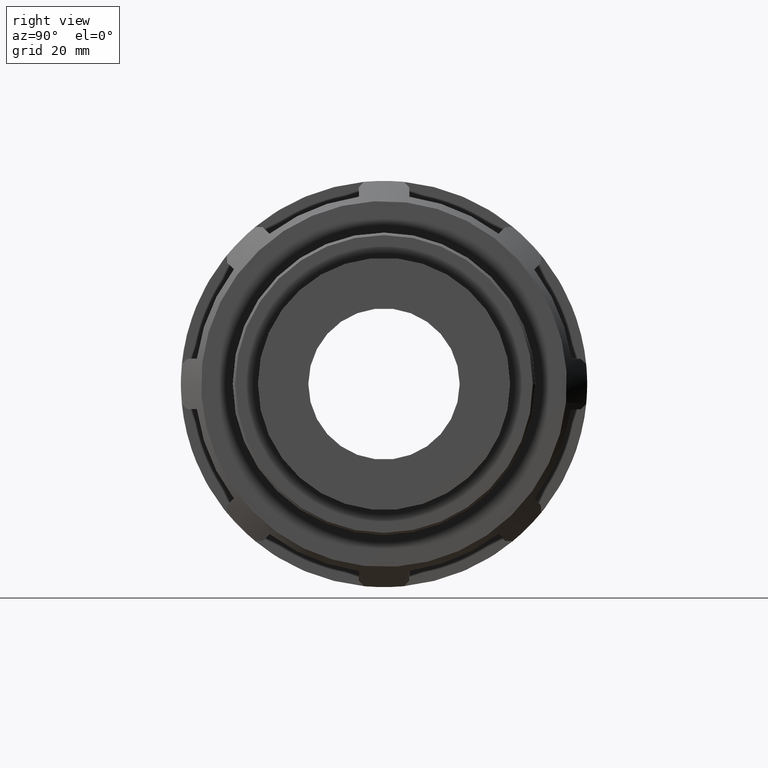
[diagram: clean part render]
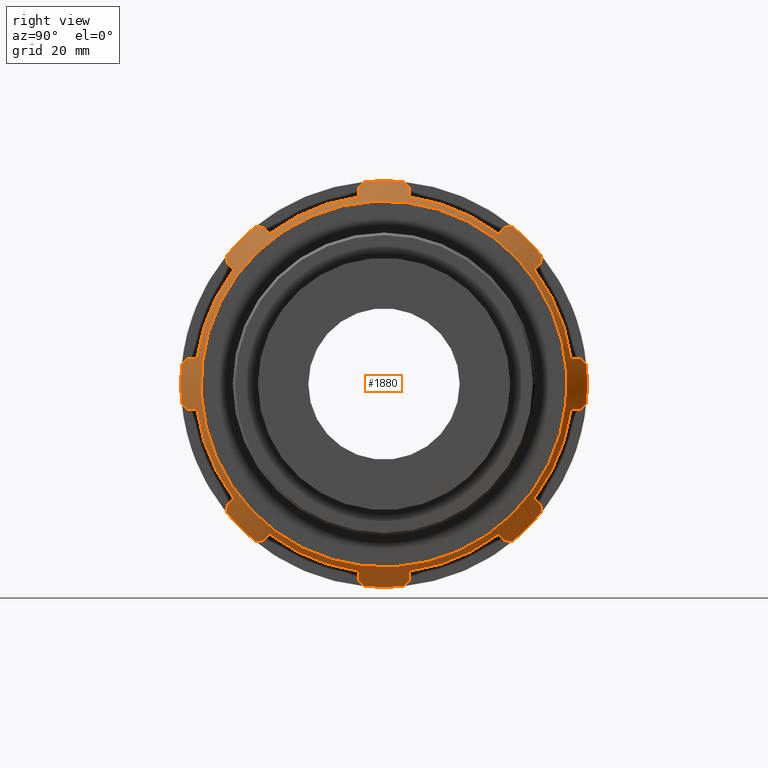
[diagram: same view with one face highlighted and labeled with its STEP entity id]
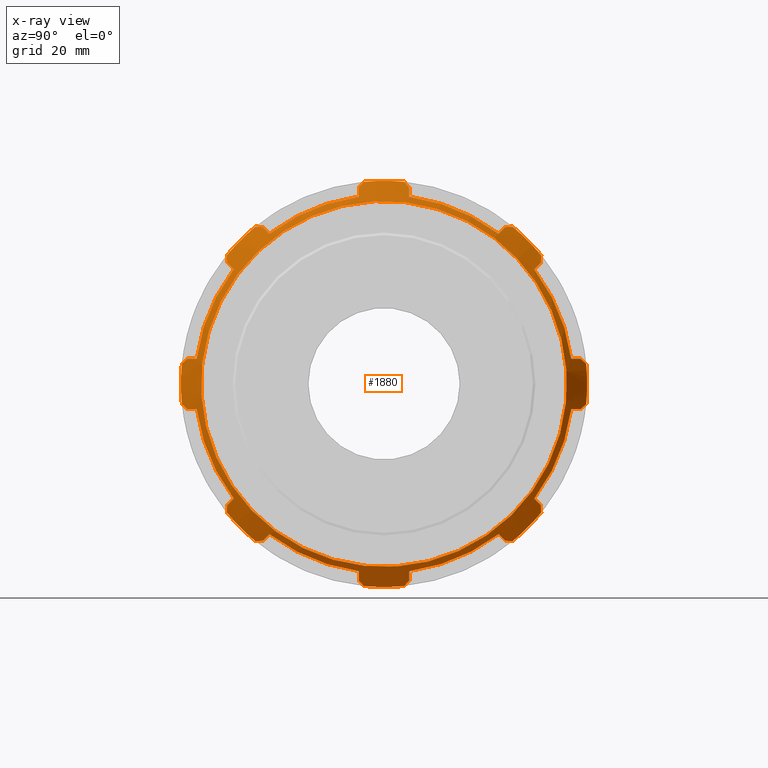
[diagram: x-ray of the same camera — body ghosted, the highlighted face saturated]
A machine part, right view. The second image highlights one B-rep face of the part: STEP entity #1880.
The next image is the same camera in x-ray: the body ghosted, the highlighted face saturated — about 0% of this face is hidden behind the body in this view.
In plain terms, the highlighted conical surface has half-angle 45 deg.
Its self-contained STEP definition (entity closure, byte-faithful):
#15=(
BOUNDED_CURVE()
B_SPLINE_CURVE(2,(#2909,#2910,#2911),.UNSPECIFIED.,.F.,.F.)
B_SPLINE_CURVE_WITH_KNOTS((3,3),(0.,0.201460557649687),.UNSPECIFIED.)
CURVE()
GEOMETRIC_REPRESENTATION_ITEM()
RATIONAL_B_SPLINE_CURVE((1.,1.00078288374616,1.00121421770646))
REPRESENTATION_ITEM('')
);
#16=(
BOUNDED_CURVE()
B_SPLINE_CURVE(2,(#2923,#2924,#2925),.UNSPECIFIED.,.F.,.F.)
B_SPLINE_CURVE_WITH_KNOTS((3,3),(0.695824563351553,0.897285121001256),
 .UNSPECIFIED.)
CURVE()
GEOMETRIC_REPRESENTATION_ITEM()
RATIONAL_B_SPLINE_CURVE((1.00121421770642,1.00078288374614,1.))
REPRESENTATION_ITEM('')
);
#17=(
BOUNDED_CURVE()
B_SPLINE_CURVE(2,(#2927,#2928,#2929),.UNSPECIFIED.,.F.,.F.)
B_SPLINE_CURVE_WITH_KNOTS((3,3),(4.710001351441,5.11449200149552),
 .UNSPECIFIED.)
CURVE()
GEOMETRIC_REPRESENTATION_ITEM()
RATIONAL_B_SPLINE_CURVE((1.01111722077628,1.00826667474192,1.00484453214834))
REPRESENTATION_ITEM('')
);
#18=(
BOUNDED_CURVE()
B_SPLINE_CURVE(2,(#2933,#2934,#2935),.UNSPECIFIED.,.F.,.F.)
B_SPLINE_CURVE_WITH_KNOTS((3,3),(0.271129458698323,0.675620108753983),
 .UNSPECIFIED.)
CURVE()
GEOMETRIC_REPRESENTATION_ITEM()
RATIONAL_B_SPLINE_CURVE((1.00484453214878,1.00826667474268,1.01111722077731))
REPRESENTATION_ITEM('')
);
#19=(
BOUNDED_CURVE()
B_SPLINE_CURVE(2,(#2937,#2938,#2939),.UNSPECIFIED.,.F.,.F.)
B_SPLINE_CURVE_WITH_KNOTS((3,3),(0.,0.2014605576497),.UNSPECIFIED.)
CURVE()
GEOMETRIC_REPRESENTATION_ITEM()
RATIONAL_B_SPLINE_CURVE((1.,1.00078288374613,1.0012142177064))
REPRESENTATION_ITEM('')
);
#20=(
BOUNDED_CURVE()
B_SPLINE_CURVE(2,(#2943,#2944,#2945),.UNSPECIFIED.,.F.,.F.)
B_SPLINE_CURVE_WITH_KNOTS((3,3),(0.695824563351545,0.897285121001251),
 .UNSPECIFIED.)
CURVE()
GEOMETRIC_REPRESENTATION_ITEM()
RATIONAL_B_SPLINE_CURVE((1.00121421770639,1.00078288374612,1.))
REPRESENTATION_ITEM('')
);
#21=(
BOUNDED_CURVE()
B_SPLINE_CURVE(2,(#2947,#2948,#2949),.UNSPECIFIED.,.F.,.F.)
B_SPLINE_CURVE_WITH_KNOTS((3,3),(4.71000135143891,5.11449200149471),
 .UNSPECIFIED.)
CURVE()
GEOMETRIC_REPRESENTATION_ITEM()
RATIONAL_B_SPLINE_CURVE((1.01111722077714,1.00826667474256,1.00484453214871))
REPRESENTATION_ITEM('')
);
#22=(
BOUNDED_CURVE()
B_SPLINE_CURVE(2,(#2953,#2954,#2955),.UNSPECIFIED.,.F.,.F.)
B_SPLINE_CURVE_WITH_KNOTS((3,3),(0.271129458696591,0.675620108749287),
 .UNSPECIFIED.)
CURVE()
GEOMETRIC_REPRESENTATION_ITEM()
RATIONAL_B_SPLINE_CURVE((1.00484453214775,1.00826667474091,1.01111722077493))
REPRESENTATION_ITEM('')
);
#23=(
BOUNDED_CURVE()
B_SPLINE_CURVE(2,(#2957,#2958,#2959),.UNSPECIFIED.,.F.,.F.)
B_SPLINE_CURVE_WITH_KNOTS((3,3),(0.,0.201460557649695),.UNSPECIFIED.)
CURVE()
GEOMETRIC_REPRESENTATION_ITEM()
RATIONAL_B_SPLINE_CURVE((1.,1.00078288374617,1.00121421770646))
REPRESENTATION_ITEM('')
);
#24=(
BOUNDED_CURVE()
B_SPLINE_CURVE(2,(#2963,#2964,#2965),.UNSPECIFIED.,.F.,.F.)
B_SPLINE_CURVE_WITH_KNOTS((3,3),(0.695824563351555,0.897285121001254),
 .UNSPECIFIED.)
CURVE()
GEOMETRIC_REPRESENTATION_ITEM()
RATIONAL_B_SPLINE_CURVE((1.00121421770642,1.00078288374614,1.))
REPRESENTATION_ITEM('')
);
#25=(
BOUNDED_CURVE()
B_SPLINE_CURVE(2,(#2967,#2968,#2969),.UNSPECIFIED.,.F.,.F.)
B_SPLINE_CURVE_WITH_KNOTS((3,3),(4.71000135144143,5.11449200149583),
 .UNSPECIFIED.)
CURVE()
GEOMETRIC_REPRESENTATION_ITEM()
RATIONAL_B_SPLINE_CURVE((1.01111722077692,1.00826667474239,1.00484453214861))
REPRESENTATION_ITEM('')
);
#26=(
BOUNDED_CURVE()
B_SPLINE_CURVE(2,(#2973,#2974,#2975),.UNSPECIFIED.,.F.,.F.)
B_SPLINE_CURVE_WITH_KNOTS((3,3),(0.271129458698479,0.67562010875426),
 .UNSPECIFIED.)
CURVE()
GEOMETRIC_REPRESENTATION_ITEM()
RATIONAL_B_SPLINE_CURVE((1.00484453214872,1.00826667474257,1.01111722077715))
REPRESENTATION_ITEM('')
);
#27=(
BOUNDED_CURVE()
B_SPLINE_CURVE(2,(#2977,#2978,#2979),.UNSPECIFIED.,.F.,.F.)
B_SPLINE_CURVE_WITH_KNOTS((3,3),(0.,0.2014605576497),.UNSPECIFIED.)
CURVE()
GEOMETRIC_REPRESENTATION_ITEM()
RATIONAL_B_SPLINE_CURVE((1.,1.00078288374613,1.00121421770641))
REPRESENTATION_ITEM('')
);
#28=(
BOUNDED_CURVE()
B_SPLINE_CURVE(2,(#2983,#2984,#2985),.UNSPECIFIED.,.F.,.F.)
B_SPLINE_CURVE_WITH_KNOTS((3,3),(0.69582456335157,0.89728512100125),
 .UNSPECIFIED.)
CURVE()
GEOMETRIC_REPRESENTATION_ITEM()
RATIONAL_B_SPLINE_CURVE((1.00121421770646,1.00078288374616,1.))
REPRESENTATION_ITEM('')
);
#29=(
BOUNDED_CURVE()
B_SPLINE_CURVE(2,(#2987,#2988,#2989),.UNSPECIFIED.,.F.,.F.)
B_SPLINE_CURVE_WITH_KNOTS((3,3),(4.71000135143912,5.11449200149484),
 .UNSPECIFIED.)
CURVE()
GEOMETRIC_REPRESENTATION_ITEM()
RATIONAL_B_SPLINE_CURVE((1.01111722077731,1.00826667474268,1.00484453214878))
REPRESENTATION_ITEM('')
);
#30=(
BOUNDED_CURVE()
B_SPLINE_CURVE(2,(#2993,#2994,#2995),.UNSPECIFIED.,.F.,.F.)
B_SPLINE_CURVE_WITH_KNOTS((3,3),(0.271129458697378,0.675620108751493),
 .UNSPECIFIED.)
CURVE()
GEOMETRIC_REPRESENTATION_ITEM()
RATIONAL_B_SPLINE_CURVE((1.0048445321483,1.00826667474185,1.01111722077619))
REPRESENTATION_ITEM('')
);
#31=(
BOUNDED_CURVE()
B_SPLINE_CURVE(2,(#2997,#2998,#2999),.UNSPECIFIED.,.F.,.F.)
B_SPLINE_CURVE_WITH_KNOTS((3,3),(0.,0.201460557649703),.UNSPECIFIED.)
CURVE()
GEOMETRIC_REPRESENTATION_ITEM()
RATIONAL_B_SPLINE_CURVE((1.,1.00078288374614,1.00121421770642))
REPRESENTATION_ITEM('')
);
#32=(
BOUNDED_CURVE()
B_SPLINE_CURVE(2,(#3003,#3004,#3005),.UNSPECIFIED.,.F.,.F.)
B_SPLINE_CURVE_WITH_KNOTS((3,3),(0.695824563351557,0.897285121001254),
 .UNSPECIFIED.)
CURVE()
GEOMETRIC_REPRESENTATION_ITEM()
RATIONAL_B_SPLINE_CURVE((1.00121421770642,1.00078288374614,1.))
REPRESENTATION_ITEM('')
);
#33=(
BOUNDED_CURVE()
B_SPLINE_CURVE(2,(#3007,#3008,#3009),.UNSPECIFIED.,.F.,.F.)
B_SPLINE_CURVE_WITH_KNOTS((3,3),(4.71000135144163,5.11449200149582),
 .UNSPECIFIED.)
CURVE()
GEOMETRIC_REPRESENTATION_ITEM()
RATIONAL_B_SPLINE_CURVE((1.01111722077634,1.00826667474196,1.00484453214836))
REPRESENTATION_ITEM('')
);
#34=(
BOUNDED_CURVE()
B_SPLINE_CURVE(2,(#3013,#3014,#3015),.UNSPECIFIED.,.F.,.F.)
B_SPLINE_CURVE_WITH_KNOTS((3,3),(0.271129458698487,0.675620108754275),
 .UNSPECIFIED.)
CURVE()
GEOMETRIC_REPRESENTATION_ITEM()
RATIONAL_B_SPLINE_CURVE((1.00484453214871,1.00826667474256,1.01111722077714))
REPRESENTATION_ITEM('')
);
#35=(
BOUNDED_CURVE()
B_SPLINE_CURVE(2,(#3017,#3018,#3019),.UNSPECIFIED.,.F.,.F.)
B_SPLINE_CURVE_WITH_KNOTS((3,3),(0.,0.201460557649712),.UNSPECIFIED.)
CURVE()
GEOMETRIC_REPRESENTATION_ITEM()
RATIONAL_B_SPLINE_CURVE((1.,1.00078288374611,1.00121421770637))
REPRESENTATION_ITEM('')
);
#36=(
BOUNDED_CURVE()
B_SPLINE_CURVE(2,(#3023,#3024,#3025),.UNSPECIFIED.,.F.,.F.)
B_SPLINE_CURVE_WITH_KNOTS((3,3),(0.69582456335154,0.897285121001254),
 .UNSPECIFIED.)
CURVE()
GEOMETRIC_REPRESENTATION_ITEM()
RATIONAL_B_SPLINE_CURVE((1.00121421770639,1.00078288374612,1.))
REPRESENTATION_ITEM('')
);
#37=(
BOUNDED_CURVE()
B_SPLINE_CURVE(2,(#3027,#3028,#3029),.UNSPECIFIED.,.F.,.F.)
B_SPLINE_CURVE_WITH_KNOTS((3,3),(4.71000135143915,5.11449200149485),
 .UNSPECIFIED.)
CURVE()
GEOMETRIC_REPRESENTATION_ITEM()
RATIONAL_B_SPLINE_CURVE((1.01111722077732,1.00826667474269,1.00484453214879))
REPRESENTATION_ITEM('')
);
#38=(
BOUNDED_CURVE()
B_SPLINE_CURVE(2,(#3033,#3034,#3035),.UNSPECIFIED.,.F.,.F.)
B_SPLINE_CURVE_WITH_KNOTS((3,3),(0.271129458697135,0.675620108751332),
 .UNSPECIFIED.)
CURVE()
GEOMETRIC_REPRESENTATION_ITEM()
RATIONAL_B_SPLINE_CURVE((1.00484453214871,1.00826667474255,1.01111722077714))
REPRESENTATION_ITEM('')
);
#39=(
BOUNDED_CURVE()
B_SPLINE_CURVE(2,(#3037,#3038,#3039),.UNSPECIFIED.,.F.,.F.)
B_SPLINE_CURVE_WITH_KNOTS((3,3),(0.,0.201460557649702),.UNSPECIFIED.)
CURVE()
GEOMETRIC_REPRESENTATION_ITEM()
RATIONAL_B_SPLINE_CURVE((1.,1.00078288374613,1.0012142177064))
REPRESENTATION_ITEM('')
);
#40=(
BOUNDED_CURVE()
B_SPLINE_CURVE(2,(#3043,#3044,#3045),.UNSPECIFIED.,.F.,.F.)
B_SPLINE_CURVE_WITH_KNOTS((3,3),(0.695824563351557,0.897285121001259),
 .UNSPECIFIED.)
CURVE()
GEOMETRIC_REPRESENTATION_ITEM()
RATIONAL_B_SPLINE_CURVE((1.0012142177064,1.00078288374613,1.))
REPRESENTATION_ITEM('')
);
#41=(
BOUNDED_CURVE()
B_SPLINE_CURVE(2,(#3047,#3048,#3049),.UNSPECIFIED.,.F.,.F.)
B_SPLINE_CURVE_WITH_KNOTS((3,3),(4.71000135144145,5.11449200149572),
 .UNSPECIFIED.)
CURVE()
GEOMETRIC_REPRESENTATION_ITEM()
RATIONAL_B_SPLINE_CURVE((1.01111722077624,1.00826667474189,1.00484453214832))
REPRESENTATION_ITEM('')
);
#42=(
BOUNDED_CURVE()
B_SPLINE_CURVE(2,(#3053,#3054,#3055),.UNSPECIFIED.,.F.,.F.)
B_SPLINE_CURVE_WITH_KNOTS((3,3),(0.271129458698487,0.675620108754275),
 .UNSPECIFIED.)
CURVE()
GEOMETRIC_REPRESENTATION_ITEM()
RATIONAL_B_SPLINE_CURVE((1.00484453214871,1.00826667474256,1.01111722077714))
REPRESENTATION_ITEM('')
);
#43=(
BOUNDED_CURVE()
B_SPLINE_CURVE(2,(#3057,#3058,#3059),.UNSPECIFIED.,.F.,.F.)
B_SPLINE_CURVE_WITH_KNOTS((3,3),(0.,0.201460557649694),.UNSPECIFIED.)
CURVE()
GEOMETRIC_REPRESENTATION_ITEM()
RATIONAL_B_SPLINE_CURVE((1.,1.00078288374614,1.00121421770641))
REPRESENTATION_ITEM('')
);
#44=(
BOUNDED_CURVE()
B_SPLINE_CURVE(2,(#3063,#3064,#3065),.UNSPECIFIED.,.F.,.F.)
B_SPLINE_CURVE_WITH_KNOTS((3,3),(0.695824563351536,0.897285121001255),
 .UNSPECIFIED.)
CURVE()
GEOMETRIC_REPRESENTATION_ITEM()
RATIONAL_B_SPLINE_CURVE((1.00121421770637,1.00078288374611,1.))
REPRESENTATION_ITEM('')
);
#45=(
BOUNDED_CURVE()
B_SPLINE_CURVE(2,(#3067,#3068,#3069),.UNSPECIFIED.,.F.,.F.)
B_SPLINE_CURVE_WITH_KNOTS((3,3),(4.71000135143915,5.11449200149485),
 .UNSPECIFIED.)
CURVE()
GEOMETRIC_REPRESENTATION_ITEM()
RATIONAL_B_SPLINE_CURVE((1.01111722077732,1.00826667474269,1.00484453214879))
REPRESENTATION_ITEM('')
);
#46=(
BOUNDED_CURVE()
B_SPLINE_CURVE(2,(#3072,#3073,#3074),.UNSPECIFIED.,.F.,.F.)
B_SPLINE_CURVE_WITH_KNOTS((3,3),(0.271129458699923,0.67562010875808),
 .UNSPECIFIED.)
CURVE()
GEOMETRIC_REPRESENTATION_ITEM()
RATIONAL_B_SPLINE_CURVE((1.00484453214947,1.00826667474386,1.01111722077888))
REPRESENTATION_ITEM('')
);
#49=CONICAL_SURFACE('',#2020,45.61544,45.);
#57=FACE_BOUND('',#341,.T.);
#105=CIRCLE('',#2021,43.23088);
#106=CIRCLE('',#2022,48.);
#107=CIRCLE('',#2023,44.64);
#108=CIRCLE('',#2024,48.);
#109=CIRCLE('',#2025,44.64);
#110=CIRCLE('',#2026,48.);
#111=CIRCLE('',#2027,44.64);
#112=CIRCLE('',#2028,48.);
#113=CIRCLE('',#2029,44.64);
#114=CIRCLE('',#2030,48.);
#115=CIRCLE('',#2031,44.64);
#116=CIRCLE('',#2032,48.);
#117=CIRCLE('',#2033,44.64);
#118=CIRCLE('',#2034,48.);
#119=CIRCLE('',#2035,44.64);
#120=CIRCLE('',#2036,48.);
#121=CIRCLE('',#2037,44.64);
#226=FACE_OUTER_BOUND('',#340,.T.);
#340=EDGE_LOOP('',(#1445));
#341=EDGE_LOOP('',(#1446,#1447,#1448,#1449,#1450,#1451,#1452,#1453,#1454,
#1455,#1456,#1457,#1458,#1459,#1460,#1461,#1462,#1463,#1464,#1465,#1466,
#1467,#1468,#1469,#1470,#1471,#1472,#1473,#1474,#1475,#1476,#1477,#1478,
#1479,#1480,#1481,#1482,#1483,#1484,#1485,#1486,#1487,#1488,#1489,#1490,
#1491,#1492,#1493));
#829=VERTEX_POINT('',#2907);
#830=VERTEX_POINT('',#2908);
#833=VERTEX_POINT('',#2918);
#834=VERTEX_POINT('',#2920);
#835=VERTEX_POINT('',#2922);
#836=VERTEX_POINT('',#2926);
#837=VERTEX_POINT('',#2930);
#838=VERTEX_POINT('',#2932);
#839=VERTEX_POINT('',#2936);
#840=VERTEX_POINT('',#2940);
#841=VERTEX_POINT('',#2942);
#842=VERTEX_POINT('',#2946);
#843=VERTEX_POINT('',#2950);
#844=VERTEX_POINT('',#2952);
#845=VERTEX_POINT('',#2956);
#846=VERTEX_POINT('',#2960);
#847=VERTEX_POINT('',#2962);
#848=VERTEX_POINT('',#2966);
#849=VERTEX_POINT('',#2970);
#850=VERTEX_POINT('',#2972);
#851=VERTEX_POINT('',#2976);
#852=VERTEX_POINT('',#2980);
#853=VERTEX_POINT('',#2982);
#854=VERTEX_POINT('',#2986);
#855=VERTEX_POINT('',#2990);
#856=VERTEX_POINT('',#2992);
#857=VERTEX_POINT('',#2996);
#858=VERTEX_POINT('',#3000);
#859=VERTEX_POINT('',#3002);
#860=VERTEX_POINT('',#3006);
#861=VERTEX_POINT('',#3010);
#862=VERTEX_POINT('',#3012);
#863=VERTEX_POINT('',#3016);
#864=VERTEX_POINT('',#3020);
#865=VERTEX_POINT('',#3022);
#866=VERTEX_POINT('',#3026);
#867=VERTEX_POINT('',#3030);
#868=VERTEX_POINT('',#3032);
#869=VERTEX_POINT('',#3036);
#870=VERTEX_POINT('',#3040);
#871=VERTEX_POINT('',#3042);
#872=VERTEX_POINT('',#3046);
#873=VERTEX_POINT('',#3050);
#874=VERTEX_POINT('',#3052);
#875=VERTEX_POINT('',#3056);
#876=VERTEX_POINT('',#3060);
#877=VERTEX_POINT('',#3062);
#878=VERTEX_POINT('',#3066);
#879=VERTEX_POINT('',#3070);
#1055=EDGE_CURVE('',#829,#830,#15,.T.);
#1059=EDGE_CURVE('',#833,#833,#105,.T.);
#1060=EDGE_CURVE('',#829,#834,#106,.T.);
#1061=EDGE_CURVE('',#835,#834,#16,.T.);
#1062=EDGE_CURVE('',#835,#836,#17,.T.);
#1063=EDGE_CURVE('',#836,#837,#107,.T.);
#1064=EDGE_CURVE('',#837,#838,#18,.T.);
#1065=EDGE_CURVE('',#839,#838,#19,.T.);
#1066=EDGE_CURVE('',#839,#840,#108,.T.);
#1067=EDGE_CURVE('',#841,#840,#20,.T.);
#1068=EDGE_CURVE('',#841,#842,#21,.T.);
#1069=EDGE_CURVE('',#842,#843,#109,.T.);
#1070=EDGE_CURVE('',#843,#844,#22,.T.);
#1071=EDGE_CURVE('',#845,#844,#23,.T.);
#1072=EDGE_CURVE('',#845,#846,#110,.T.);
#1073=EDGE_CURVE('',#847,#846,#24,.T.);
#1074=EDGE_CURVE('',#847,#848,#25,.T.);
#1075=EDGE_CURVE('',#848,#849,#111,.T.);
#1076=EDGE_CURVE('',#849,#850,#26,.T.);
#1077=EDGE_CURVE('',#851,#850,#27,.T.);
#1078=EDGE_CURVE('',#851,#852,#112,.T.);
#1079=EDGE_CURVE('',#853,#852,#28,.T.);
#1080=EDGE_CURVE('',#853,#854,#29,.T.);
#1081=EDGE_CURVE('',#854,#855,#113,.T.);
#1082=EDGE_CURVE('',#855,#856,#30,.T.);
#1083=EDGE_CURVE('',#857,#856,#31,.T.);
#1084=EDGE_CURVE('',#857,#858,#114,.T.);
#1085=EDGE_CURVE('',#859,#858,#32,.T.);
#1086=EDGE_CURVE('',#859,#860,#33,.T.);
#1087=EDGE_CURVE('',#860,#861,#115,.T.);
#1088=EDGE_CURVE('',#861,#862,#34,.T.);
#1089=EDGE_CURVE('',#863,#862,#35,.T.);
#1090=EDGE_CURVE('',#863,#864,#116,.T.);
#1091=EDGE_CURVE('',#865,#864,#36,.T.);
#1092=EDGE_CURVE('',#865,#866,#37,.T.);
#1093=EDGE_CURVE('',#866,#867,#117,.T.);
#1094=EDGE_CURVE('',#867,#868,#38,.T.);
#1095=EDGE_CURVE('',#869,#868,#39,.T.);
#1096=EDGE_CURVE('',#869,#870,#118,.T.);
#1097=EDGE_CURVE('',#871,#870,#40,.T.);
#1098=EDGE_CURVE('',#871,#872,#41,.T.);
#1099=EDGE_CURVE('',#872,#873,#119,.T.);
#1100=EDGE_CURVE('',#873,#874,#42,.T.);
#1101=EDGE_CURVE('',#875,#874,#43,.T.);
#1102=EDGE_CURVE('',#875,#876,#120,.T.);
#1103=EDGE_CURVE('',#877,#876,#44,.T.);
#1104=EDGE_CURVE('',#877,#878,#45,.T.);
#1105=EDGE_CURVE('',#878,#879,#121,.T.);
#1106=EDGE_CURVE('',#879,#830,#46,.T.);
#1445=ORIENTED_EDGE('',*,*,#1059,.T.);
#1446=ORIENTED_EDGE('',*,*,#1055,.F.);
#1447=ORIENTED_EDGE('',*,*,#1060,.T.);
#1448=ORIENTED_EDGE('',*,*,#1061,.F.);
#1449=ORIENTED_EDGE('',*,*,#1062,.T.);
#1450=ORIENTED_EDGE('',*,*,#1063,.T.);
#1451=ORIENTED_EDGE('',*,*,#1064,.T.);
#1452=ORIENTED_EDGE('',*,*,#1065,.F.);
#1453=ORIENTED_EDGE('',*,*,#1066,.T.);
#1454=ORIENTED_EDGE('',*,*,#1067,.F.);
#1455=ORIENTED_EDGE('',*,*,#1068,.T.);
#1456=ORIENTED_EDGE('',*,*,#1069,.T.);
#1457=ORIENTED_EDGE('',*,*,#1070,.T.);
#1458=ORIENTED_EDGE('',*,*,#1071,.F.);
#1459=ORIENTED_EDGE('',*,*,#1072,.T.);
#1460=ORIENTED_EDGE('',*,*,#1073,.F.);
#1461=ORIENTED_EDGE('',*,*,#1074,.T.);
#1462=ORIENTED_EDGE('',*,*,#1075,.T.);
#1463=ORIENTED_EDGE('',*,*,#1076,.T.);
#1464=ORIENTED_EDGE('',*,*,#1077,.F.);
#1465=ORIENTED_EDGE('',*,*,#1078,.T.);
#1466=ORIENTED_EDGE('',*,*,#1079,.F.);
#1467=ORIENTED_EDGE('',*,*,#1080,.T.);
#1468=ORIENTED_EDGE('',*,*,#1081,.T.);
#1469=ORIENTED_EDGE('',*,*,#1082,.T.);
#1470=ORIENTED_EDGE('',*,*,#1083,.F.);
#1471=ORIENTED_EDGE('',*,*,#1084,.T.);
#1472=ORIENTED_EDGE('',*,*,#1085,.F.);
#1473=ORIENTED_EDGE('',*,*,#1086,.T.);
#1474=ORIENTED_EDGE('',*,*,#1087,.T.);
#1475=ORIENTED_EDGE('',*,*,#1088,.T.);
#1476=ORIENTED_EDGE('',*,*,#1089,.F.);
#1477=ORIENTED_EDGE('',*,*,#1090,.T.);
#1478=ORIENTED_EDGE('',*,*,#1091,.F.);
#1479=ORIENTED_EDGE('',*,*,#1092,.T.);
#1480=ORIENTED_EDGE('',*,*,#1093,.T.);
#1481=ORIENTED_EDGE('',*,*,#1094,.T.);
#1482=ORIENTED_EDGE('',*,*,#1095,.F.);
#1483=ORIENTED_EDGE('',*,*,#1096,.T.);
#1484=ORIENTED_EDGE('',*,*,#1097,.F.);
#1485=ORIENTED_EDGE('',*,*,#1098,.T.);
#1486=ORIENTED_EDGE('',*,*,#1099,.T.);
#1487=ORIENTED_EDGE('',*,*,#1100,.T.);
#1488=ORIENTED_EDGE('',*,*,#1101,.F.);
#1489=ORIENTED_EDGE('',*,*,#1102,.T.);
#1490=ORIENTED_EDGE('',*,*,#1103,.F.);
#1491=ORIENTED_EDGE('',*,*,#1104,.T.);
#1492=ORIENTED_EDGE('',*,*,#1105,.T.);
#1493=ORIENTED_EDGE('',*,*,#1106,.T.);
#1880=ADVANCED_FACE('',(#226,#57),#49,.T.);
#2020=AXIS2_PLACEMENT_3D('',#2917,#2368,#2369);
#2021=AXIS2_PLACEMENT_3D('',#2919,#2370,#2371);
#2022=AXIS2_PLACEMENT_3D('',#2921,#2372,#2373);
#2023=AXIS2_PLACEMENT_3D('',#2931,#2374,#2375);
#2024=AXIS2_PLACEMENT_3D('',#2941,#2376,#2377);
#2025=AXIS2_PLACEMENT_3D('',#2951,#2378,#2379);
#2026=AXIS2_PLACEMENT_3D('',#2961,#2380,#2381);
#2027=AXIS2_PLACEMENT_3D('',#2971,#2382,#2383);
#2028=AXIS2_PLACEMENT_3D('',#2981,#2384,#2385);
#2029=AXIS2_PLACEMENT_3D('',#2991,#2386,#2387);
#2030=AXIS2_PLACEMENT_3D('',#3001,#2388,#2389);
#2031=AXIS2_PLACEMENT_3D('',#3011,#2390,#2391);
#2032=AXIS2_PLACEMENT_3D('',#3021,#2392,#2393);
#2033=AXIS2_PLACEMENT_3D('',#3031,#2394,#2395);
#2034=AXIS2_PLACEMENT_3D('',#3041,#2396,#2397);
#2035=AXIS2_PLACEMENT_3D('',#3051,#2398,#2399);
#2036=AXIS2_PLACEMENT_3D('',#3061,#2400,#2401);
#2037=AXIS2_PLACEMENT_3D('',#3071,#2402,#2403);
#2368=DIRECTION('center_axis',(-1.,0.,0.));
#2369=DIRECTION('ref_axis',(0.,1.,0.));
#2370=DIRECTION('center_axis',(-1.,0.,0.));
#2371=DIRECTION('ref_axis',(0.,1.,0.));
#2372=DIRECTION('center_axis',(1.,0.,0.));
#2373=DIRECTION('ref_axis',(0.,1.,0.));
#2374=DIRECTION('center_axis',(1.,0.,0.));
#2375=DIRECTION('ref_axis',(0.,1.,0.));
#2376=DIRECTION('center_axis',(1.,0.,0.));
#2377=DIRECTION('ref_axis',(0.,1.,0.));
#2378=DIRECTION('center_axis',(1.,0.,0.));
#2379=DIRECTION('ref_axis',(0.,1.,0.));
#2380=DIRECTION('center_axis',(1.,0.,0.));
#2381=DIRECTION('ref_axis',(0.,-1.,0.));
#2382=DIRECTION('center_axis',(1.,0.,0.));
#2383=DIRECTION('ref_axis',(0.,1.,0.));
#2384=DIRECTION('center_axis',(1.,0.,0.));
#2385=DIRECTION('ref_axis',(0.,-1.,0.));
#2386=DIRECTION('center_axis',(1.,0.,0.));
#2387=DIRECTION('ref_axis',(0.,1.,0.));
#2388=DIRECTION('center_axis',(1.,0.,0.));
#2389=DIRECTION('ref_axis',(0.,-1.,0.));
#2390=DIRECTION('center_axis',(1.,0.,0.));
#2391=DIRECTION('ref_axis',(0.,1.,0.));
#2392=DIRECTION('center_axis',(1.,0.,0.));
#2393=DIRECTION('ref_axis',(0.,1.,0.));
#2394=DIRECTION('center_axis',(1.,0.,0.));
#2395=DIRECTION('ref_axis',(0.,1.,0.));
#2396=DIRECTION('center_axis',(1.,0.,0.));
#2397=DIRECTION('ref_axis',(0.,1.,0.));
#2398=DIRECTION('center_axis',(1.,0.,0.));
#2399=DIRECTION('ref_axis',(0.,1.,0.));
#2400=DIRECTION('center_axis',(1.,0.,0.));
#2401=DIRECTION('ref_axis',(0.,1.,0.));
#2402=DIRECTION('center_axis',(1.,0.,0.));
#2403=DIRECTION('ref_axis',(0.,1.,0.));
#2907=CARTESIAN_POINT('',(36.42588,37.1502206024294,30.3950836352004));
#2908=CARTESIAN_POINT('',(37.608694868908,37.0506210987901,28.6199283680591));
#2909=CARTESIAN_POINT('Ctrl Pts',(36.42588,37.1502206024294,30.3950836352004));
#2910=CARTESIAN_POINT('Ctrl Pts',(37.0339568614108,37.099799614208,29.4964337469446));
#2911=CARTESIAN_POINT('Ctrl Pts',(37.608694868908,37.0506210987901,28.6199283680591));
#2917=CARTESIAN_POINT('Origin',(38.81044,0.,0.));
#2918=CARTESIAN_POINT('',(41.195,26.0614656829199,34.4921584136509));
#2919=CARTESIAN_POINT('Origin',(41.195,0.,0.));
#2920=CARTESIAN_POINT('',(36.42588,30.3950836352004,37.1502206024294));
#2921=CARTESIAN_POINT('Origin',(36.42588,0.,0.));
#2922=CARTESIAN_POINT('',(37.608694868908,28.6199283680591,37.0506210987901));
#2923=CARTESIAN_POINT('Ctrl Pts',(37.608694868908,28.6199283680591,37.0506210987901));
#2924=CARTESIAN_POINT('Ctrl Pts',(37.0339568614108,29.4964337469447,37.099799614208));
#2925=CARTESIAN_POINT('Ctrl Pts',(36.42588,30.3950836352005,37.1502206024294));
#2926=CARTESIAN_POINT('',(39.78588,27.0671672008427,35.4978599315737));
#2927=CARTESIAN_POINT('Ctrl Pts',(37.608694868908,28.6199283680591,37.0506210987901));
#2928=CARTESIAN_POINT('Ctrl Pts',(38.7236502318544,27.8250656470411,36.2557583777721));
#2929=CARTESIAN_POINT('Ctrl Pts',(39.78588,27.0671672008427,35.4978599315737));
#2930=CARTESIAN_POINT('',(39.78588,5.96139999999999,44.240154950452));
#2931=CARTESIAN_POINT('Origin',(39.78588,0.,0.));
#2932=CARTESIAN_POINT('',(37.608694868908,5.9614,46.4360908522557));
#2933=CARTESIAN_POINT('Ctrl Pts',(39.78588,5.96139999999999,44.240154950452));
#2934=CARTESIAN_POINT('Ctrl Pts',(38.7236502318542,5.9614,45.3119852119675));
#2935=CARTESIAN_POINT('Ctrl Pts',(37.608694868908,5.9614,46.4360908522557));
#2936=CARTESIAN_POINT('',(36.42588,4.77660315737155,47.7617426637365));
#2937=CARTESIAN_POINT('Ctrl Pts',(36.42588,4.77660315737155,47.7617426637365));
#2938=CARTESIAN_POINT('Ctrl Pts',(37.0339568614108,5.37639156458421,47.0906482111528));
#2939=CARTESIAN_POINT('Ctrl Pts',(37.608694868908,5.9614,46.4360908522557));
#2940=CARTESIAN_POINT('',(36.42588,-4.77660315737156,47.7617426637365));
#2941=CARTESIAN_POINT('Origin',(36.42588,0.,0.));
#2942=CARTESIAN_POINT('',(37.608694868908,-5.9614,46.4360908522557));
#2943=CARTESIAN_POINT('Ctrl Pts',(37.608694868908,-5.9614,46.4360908522557));
#2944=CARTESIAN_POINT('Ctrl Pts',(37.0339568614108,-5.37639156458421,47.0906482111528));
#2945=CARTESIAN_POINT('Ctrl Pts',(36.42588,-4.77660315737156,47.7617426637365));
#2946=CARTESIAN_POINT('',(39.78588,-5.9614,44.240154950452));
#2947=CARTESIAN_POINT('Ctrl Pts',(37.608694868908,-5.9614,46.4360908522557));
#2948=CARTESIAN_POINT('Ctrl Pts',(38.7236502318546,-5.9614,45.3119852119671));
#2949=CARTESIAN_POINT('Ctrl Pts',(39.78588,-5.9614,44.240154950452));
#2950=CARTESIAN_POINT('',(39.78588,-27.0671672008427,35.4978599315737));
#2951=CARTESIAN_POINT('Origin',(39.78588,0.,0.));
#2952=CARTESIAN_POINT('',(37.608694868908,-28.6199283680591,37.0506210987901));
#2953=CARTESIAN_POINT('Ctrl Pts',(39.78588,-27.0671672008427,35.4978599315737));
#2954=CARTESIAN_POINT('Ctrl Pts',(38.7236502318539,-27.8250656470415,36.2557583777725));
#2955=CARTESIAN_POINT('Ctrl Pts',(37.608694868908,-28.6199283680591,37.0506210987901));
#2956=CARTESIAN_POINT('',(36.42588,-30.3950836352004,37.1502206024294));
#2957=CARTESIAN_POINT('Ctrl Pts',(36.42588,-30.3950836352004,37.1502206024294));
#2958=CARTESIAN_POINT('Ctrl Pts',(37.0339568614108,-29.4964337469446,37.099799614208));
#2959=CARTESIAN_POINT('Ctrl Pts',(37.608694868908,-28.6199283680591,37.0506210987901));
#2960=CARTESIAN_POINT('',(36.42588,-37.1502206024294,30.3950836352004));
#2961=CARTESIAN_POINT('Origin',(36.42588,0.,0.));
#2962=CARTESIAN_POINT('',(37.608694868908,-37.0506210987901,28.6199283680591));
#2963=CARTESIAN_POINT('Ctrl Pts',(37.608694868908,-37.0506210987901,28.6199283680591));
#2964=CARTESIAN_POINT('Ctrl Pts',(37.0339568614108,-37.099799614208,29.4964337469446));
#2965=CARTESIAN_POINT('Ctrl Pts',(36.42588,-37.1502206024294,30.3950836352004));
#2966=CARTESIAN_POINT('',(39.78588,-35.4978599315737,27.0671672008427));
#2967=CARTESIAN_POINT('Ctrl Pts',(37.608694868908,-37.0506210987901,28.6199283680591));
#2968=CARTESIAN_POINT('Ctrl Pts',(38.7236502318541,-36.2557583777723,27.8250656470413));
#2969=CARTESIAN_POINT('Ctrl Pts',(39.78588,-35.4978599315737,27.0671672008427));
#2970=CARTESIAN_POINT('',(39.78588,-44.240154950452,5.9614));
#2971=CARTESIAN_POINT('Origin',(39.78588,0.,0.));
#2972=CARTESIAN_POINT('',(37.608694868908,-46.4360908522557,5.9614));
#2973=CARTESIAN_POINT('Ctrl Pts',(39.78588,-44.240154950452,5.9614));
#2974=CARTESIAN_POINT('Ctrl Pts',(38.7236502318543,-45.3119852119674,5.9614));
#2975=CARTESIAN_POINT('Ctrl Pts',(37.608694868908,-46.4360908522557,5.9614));
#2976=CARTESIAN_POINT('',(36.42588,-47.7617426637365,4.77660315737155));
#2977=CARTESIAN_POINT('Ctrl Pts',(36.42588,-47.7617426637365,4.77660315737155));
#2978=CARTESIAN_POINT('Ctrl Pts',(37.0339568614108,-47.0906482111528,5.37639156458421));
#2979=CARTESIAN_POINT('Ctrl Pts',(37.608694868908,-46.4360908522557,5.9614));
#2980=CARTESIAN_POINT('',(36.42588,-47.7617426637365,-4.77660315737156));
#2981=CARTESIAN_POINT('Origin',(36.42588,0.,0.));
#2982=CARTESIAN_POINT('',(37.608694868908,-46.4360908522557,-5.9614));
#2983=CARTESIAN_POINT('Ctrl Pts',(37.608694868908,-46.4360908522557,-5.9614));
#2984=CARTESIAN_POINT('Ctrl Pts',(37.0339568614108,-47.0906482111528,-5.37639156458426));
#2985=CARTESIAN_POINT('Ctrl Pts',(36.42588,-47.7617426637365,-4.77660315737156));
#2986=CARTESIAN_POINT('',(39.78588,-44.240154950452,-5.9614));
#2987=CARTESIAN_POINT('Ctrl Pts',(37.608694868908,-46.4360908522557,-5.9614));
#2988=CARTESIAN_POINT('Ctrl Pts',(38.7236502318545,-45.3119852119672,-5.9614));
#2989=CARTESIAN_POINT('Ctrl Pts',(39.78588,-44.240154950452,-5.9614));
#2990=CARTESIAN_POINT('',(39.78588,-35.4978599315737,-27.0671672008427));
#2991=CARTESIAN_POINT('Origin',(39.78588,0.,0.));
#2992=CARTESIAN_POINT('',(37.608694868908,-37.0506210987901,-28.6199283680591));
#2993=CARTESIAN_POINT('Ctrl Pts',(39.78588,-35.4978599315737,-27.0671672008427));
#2994=CARTESIAN_POINT('Ctrl Pts',(38.723650231854,-36.2557583777724,-27.8250656470414));
#2995=CARTESIAN_POINT('Ctrl Pts',(37.608694868908,-37.0506210987901,-28.6199283680591));
#2996=CARTESIAN_POINT('',(36.42588,-37.1502206024294,-30.3950836352004));
#2997=CARTESIAN_POINT('Ctrl Pts',(36.42588,-37.1502206024294,-30.3950836352004));
#2998=CARTESIAN_POINT('Ctrl Pts',(37.0339568614108,-37.099799614208,-29.4964337469447));
#2999=CARTESIAN_POINT('Ctrl Pts',(37.608694868908,-37.0506210987901,-28.6199283680591));
#3000=CARTESIAN_POINT('',(36.42588,-30.3950836352004,-37.1502206024294));
#3001=CARTESIAN_POINT('Origin',(36.42588,0.,0.));
#3002=CARTESIAN_POINT('',(37.608694868908,-28.6199283680591,-37.0506210987901));
#3003=CARTESIAN_POINT('Ctrl Pts',(37.608694868908,-28.6199283680591,-37.0506210987901));
#3004=CARTESIAN_POINT('Ctrl Pts',(37.0339568614108,-29.4964337469446,-37.099799614208));
#3005=CARTESIAN_POINT('Ctrl Pts',(36.42588,-30.3950836352004,-37.1502206024294));
#3006=CARTESIAN_POINT('',(39.78588,-27.0671672008427,-35.4978599315737));
#3007=CARTESIAN_POINT('Ctrl Pts',(37.608694868908,-28.6199283680591,-37.0506210987901));
#3008=CARTESIAN_POINT('Ctrl Pts',(38.7236502318542,-27.8250656470413,-36.2557583777722));
#3009=CARTESIAN_POINT('Ctrl Pts',(39.78588,-27.0671672008427,-35.4978599315737));
#3010=CARTESIAN_POINT('',(39.78588,-5.9614,-44.240154950452));
#3011=CARTESIAN_POINT('Origin',(39.78588,0.,0.));
#3012=CARTESIAN_POINT('',(37.608694868908,-5.9614,-46.4360908522557));
#3013=CARTESIAN_POINT('Ctrl Pts',(39.78588,-5.9614,-44.240154950452));
#3014=CARTESIAN_POINT('Ctrl Pts',(38.7236502318543,-5.9614,-45.3119852119674));
#3015=CARTESIAN_POINT('Ctrl Pts',(37.608694868908,-5.9614,-46.4360908522557));
#3016=CARTESIAN_POINT('',(36.42588,-4.77660315737156,-47.7617426637365));
#3017=CARTESIAN_POINT('Ctrl Pts',(36.42588,-4.77660315737154,-47.7617426637365));
#3018=CARTESIAN_POINT('Ctrl Pts',(37.0339568614108,-5.37639156458419,-47.0906482111528));
#3019=CARTESIAN_POINT('Ctrl Pts',(37.608694868908,-5.9614,-46.4360908522557));
#3020=CARTESIAN_POINT('',(36.42588,4.77660315737155,-47.7617426637365));
#3021=CARTESIAN_POINT('Origin',(36.42588,0.,0.));
#3022=CARTESIAN_POINT('',(37.608694868908,5.96139999999999,-46.4360908522557));
#3023=CARTESIAN_POINT('Ctrl Pts',(37.608694868908,5.96139999999999,-46.4360908522557));
#3024=CARTESIAN_POINT('Ctrl Pts',(37.0339568614108,5.37639156458419,-47.0906482111528));
#3025=CARTESIAN_POINT('Ctrl Pts',(36.42588,4.77660315737154,-47.7617426637365));
#3026=CARTESIAN_POINT('',(39.78588,5.9614,-44.240154950452));
#3027=CARTESIAN_POINT('Ctrl Pts',(37.608694868908,5.96139999999999,-46.4360908522557));
#3028=CARTESIAN_POINT('Ctrl Pts',(38.7236502318545,5.96139999999999,-45.3119852119672));
#3029=CARTESIAN_POINT('Ctrl Pts',(39.78588,5.9614,-44.240154950452));
#3030=CARTESIAN_POINT('',(39.78588,27.0671672008427,-35.4978599315737));
#3031=CARTESIAN_POINT('Origin',(39.78588,0.,0.));
#3032=CARTESIAN_POINT('',(37.608694868908,28.6199283680591,-37.0506210987901));
#3033=CARTESIAN_POINT('Ctrl Pts',(39.78588,27.0671672008427,-35.4978599315737));
#3034=CARTESIAN_POINT('Ctrl Pts',(38.7236502318537,27.8250656470417,-36.2557583777726));
#3035=CARTESIAN_POINT('Ctrl Pts',(37.608694868908,28.6199283680591,-37.0506210987901));
#3036=CARTESIAN_POINT('',(36.42588,30.3950836352004,-37.1502206024294));
#3037=CARTESIAN_POINT('Ctrl Pts',(36.42588,30.3950836352004,-37.1502206024294));
#3038=CARTESIAN_POINT('Ctrl Pts',(37.0339568614108,29.4964337469446,-37.099799614208));
#3039=CARTESIAN_POINT('Ctrl Pts',(37.608694868908,28.6199283680591,-37.0506210987901));
#3040=CARTESIAN_POINT('',(36.42588,37.1502206024294,-30.3950836352004));
#3041=CARTESIAN_POINT('Origin',(36.42588,0.,0.));
#3042=CARTESIAN_POINT('',(37.608694868908,37.0506210987901,-28.6199283680591));
#3043=CARTESIAN_POINT('Ctrl Pts',(37.608694868908,37.0506210987901,-28.6199283680591));
#3044=CARTESIAN_POINT('Ctrl Pts',(37.0339568614108,37.099799614208,-29.4964337469447));
#3045=CARTESIAN_POINT('Ctrl Pts',(36.42588,37.1502206024294,-30.3950836352004));
#3046=CARTESIAN_POINT('',(39.78588,35.4978599315737,-27.0671672008427));
#3047=CARTESIAN_POINT('Ctrl Pts',(37.608694868908,37.0506210987901,-28.6199283680591));
#3048=CARTESIAN_POINT('Ctrl Pts',(38.7236502318543,36.2557583777722,-27.8250656470412));
#3049=CARTESIAN_POINT('Ctrl Pts',(39.78588,35.4978599315737,-27.0671672008427));
#3050=CARTESIAN_POINT('',(39.78588,44.240154950452,-5.9614));
#3051=CARTESIAN_POINT('Origin',(39.78588,0.,0.));
#3052=CARTESIAN_POINT('',(37.608694868908,46.4360908522557,-5.9614));
#3053=CARTESIAN_POINT('Ctrl Pts',(39.78588,44.240154950452,-5.9614));
#3054=CARTESIAN_POINT('Ctrl Pts',(38.7236502318543,45.3119852119674,-5.9614));
#3055=CARTESIAN_POINT('Ctrl Pts',(37.608694868908,46.4360908522557,-5.9614));
#3056=CARTESIAN_POINT('',(36.42588,47.7617426637365,-4.77660315737156));
#3057=CARTESIAN_POINT('Ctrl Pts',(36.42588,47.7617426637365,-4.77660315737154));
#3058=CARTESIAN_POINT('Ctrl Pts',(37.0339568614108,47.0906482111528,-5.37639156458422));
#3059=CARTESIAN_POINT('Ctrl Pts',(37.608694868908,46.4360908522557,-5.9614));
#3060=CARTESIAN_POINT('',(36.42588,47.7617426637365,4.77660315737155));
#3061=CARTESIAN_POINT('Origin',(36.42588,0.,0.));
#3062=CARTESIAN_POINT('',(37.608694868908,46.4360908522557,5.96139999999999));
#3063=CARTESIAN_POINT('Ctrl Pts',(37.608694868908,46.4360908522557,5.96139999999999));
#3064=CARTESIAN_POINT('Ctrl Pts',(37.0339568614108,47.0906482111528,5.37639156458417));
#3065=CARTESIAN_POINT('Ctrl Pts',(36.42588,47.7617426637365,4.77660315737153));
#3066=CARTESIAN_POINT('',(39.78588,44.240154950452,5.9614));
#3067=CARTESIAN_POINT('Ctrl Pts',(37.608694868908,46.4360908522557,5.96139999999999));
#3068=CARTESIAN_POINT('Ctrl Pts',(38.7236502318545,45.3119852119672,5.9614));
#3069=CARTESIAN_POINT('Ctrl Pts',(39.78588,44.240154950452,5.9614));
#3070=CARTESIAN_POINT('',(39.78588,35.4978599315737,27.0671672008427));
#3071=CARTESIAN_POINT('Origin',(39.78588,0.,0.));
#3072=CARTESIAN_POINT('Ctrl Pts',(39.78588,35.4978599315737,27.0671672008427));
#3073=CARTESIAN_POINT('Ctrl Pts',(38.7236502318546,36.255758377772,27.825065647041));
#3074=CARTESIAN_POINT('Ctrl Pts',(37.608694868908,37.0506210987901,28.6199283680591));